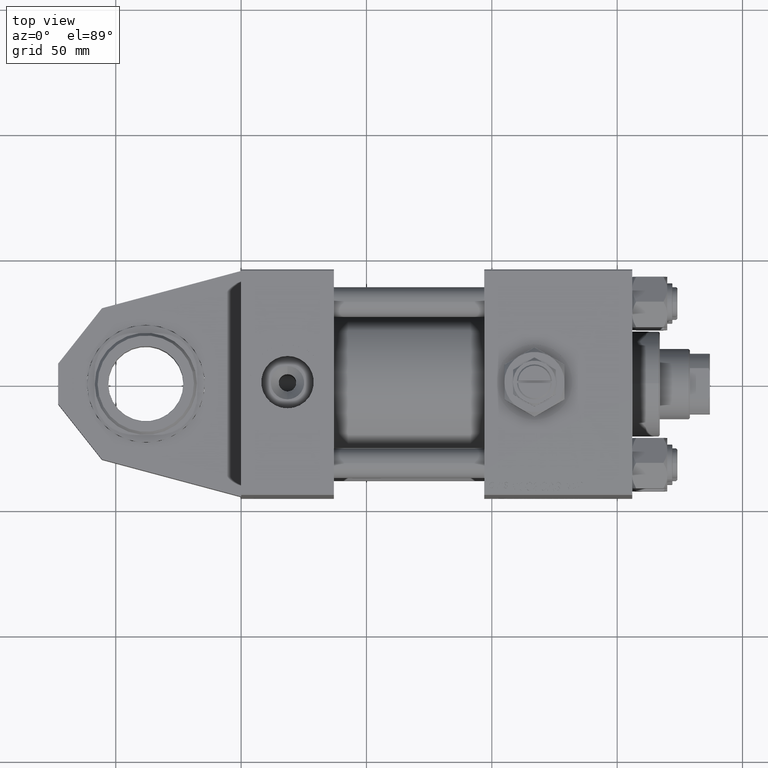
[diagram: clean part render]
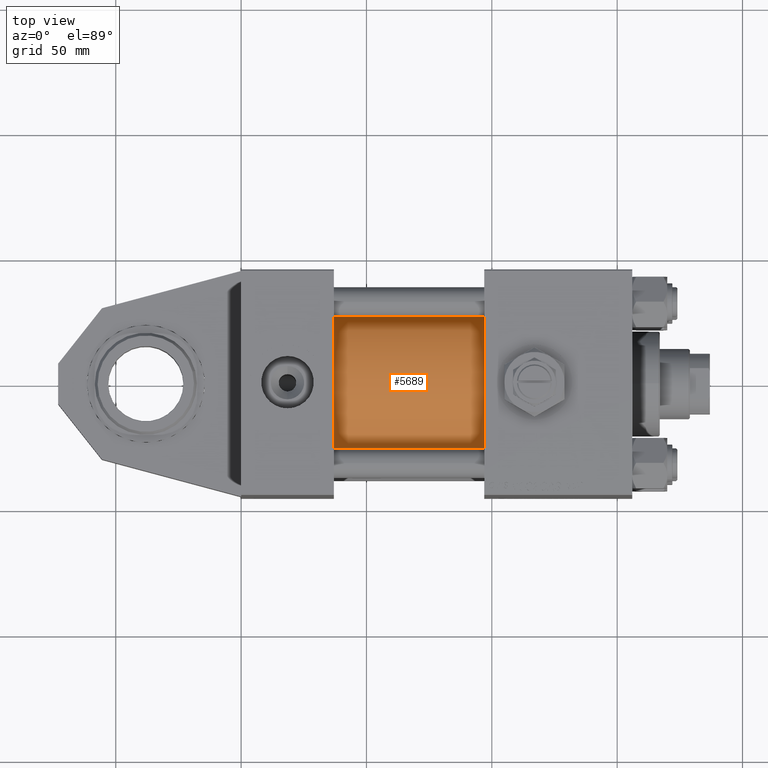
[diagram: same view with one face highlighted and labeled with its STEP entity id]
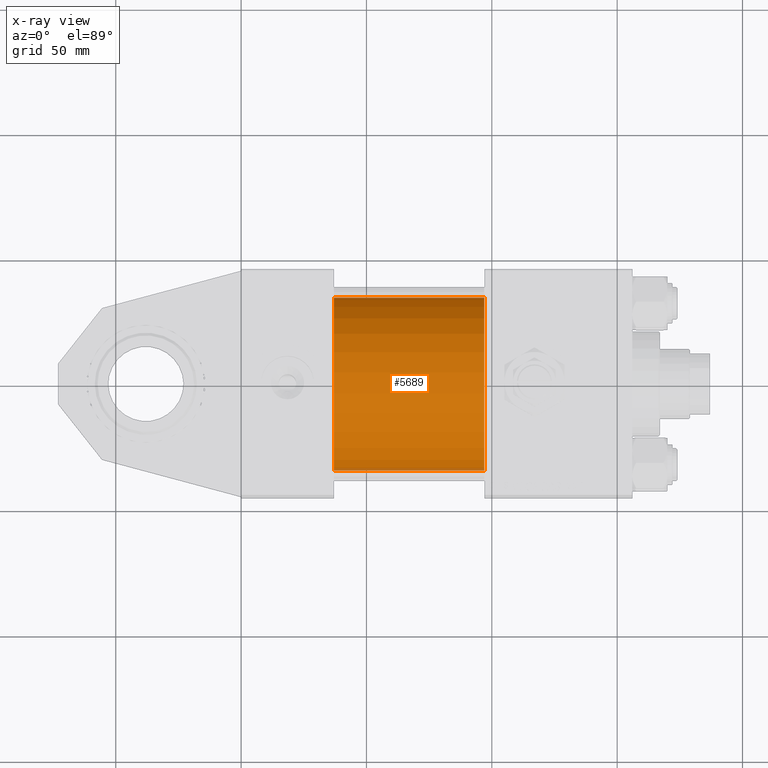
[diagram: x-ray of the same camera — body ghosted, the highlighted face saturated]
A machine part, top view. The second image highlights one B-rep face of the part: STEP entity #5689.
The next image is the same camera in x-ray: the body ghosted, the highlighted face saturated — about 2% of this face is hidden behind the body in this view.
In plain terms, the highlighted cylindrical surface (partial cylindrical patch) has radius 34.5 mm, axis along (-1, 0, -0).
Its self-contained STEP definition (entity closure, byte-faithful):
#3249 = CARTESIAN_POINT ( 'NONE',  ( 97.00000000000000000, 1.622946243093158675E-15, -34.50000000000000000 ) ) ;
#3733 = CARTESIAN_POINT ( 'NONE',  ( 97.00000000000000000, 1.622946243093158675E-15, -34.50000000000000000 ) ) ;
#4621 = DIRECTION ( 'NONE',  ( -1.000000000000000000, -0.000000000000000000, -0.000000000000000000 ) ) ;
#5689 = ADVANCED_FACE ( 'NONE', ( #8566 ), #41112, .T. ) ;
#5774 = AXIS2_PLACEMENT_3D ( 'NONE', #40589, #4621, #13029 ) ;
#6840 = DIRECTION ( 'NONE',  ( -1.000000000000000000, -0.000000000000000000, -0.000000000000000000 ) ) ;
#8328 = VERTEX_POINT ( 'NONE', #11573 ) ;
#8566 = FACE_OUTER_BOUND ( 'NONE', #17679, .T. ) ;
#10545 = CARTESIAN_POINT ( 'NONE',  ( 37.00000000000000000, 1.622946243093158675E-15, -34.50000000000000000 ) ) ;
#11573 = CARTESIAN_POINT ( 'NONE',  ( 37.00000000000000000, -2.602085213965210642E-15, 34.50000000000000000 ) ) ;
#13029 = DIRECTION ( 'NONE',  ( 0.000000000000000000, 0.000000000000000000, 1.000000000000000000 ) ) ;
#15046 = CARTESIAN_POINT ( 'NONE',  ( 97.00000000000000000, -2.602085213965210642E-15, 0.000000000000000000 ) ) ;
#15196 = CARTESIAN_POINT ( 'NONE',  ( 37.00000000000000000, -2.602085213965210642E-15, 0.000000000000000000 ) ) ;
#15457 = DIRECTION ( 'NONE',  ( 0.000000000000000000, 0.000000000000000000, 1.000000000000000000 ) ) ;
#17679 = EDGE_LOOP ( 'NONE', ( #34786, #31860, #42604, #38163 ) ) ;
#18079 = EDGE_CURVE ( 'NONE', #38150, #8328, #18635, .T. ) ;
#18635 = LINE ( 'NONE', #46215, #37948 ) ;
#19378 = DIRECTION ( 'NONE',  ( 1.000000000000000000, -0.000000000000000000, 0.000000000000000000 ) ) ;
#19951 = VERTEX_POINT ( 'NONE', #3733 ) ;
#20259 = AXIS2_PLACEMENT_3D ( 'NONE', #15046, #42865, #39439 ) ;
#20775 = EDGE_CURVE ( 'NONE', #19951, #38150, #42916, .T. ) ;
#23194 = DIRECTION ( 'NONE',  ( -1.000000000000000000, -0.000000000000000000, -0.000000000000000000 ) ) ;
#24319 = VECTOR ( 'NONE', #23194, 1000.000000000000000 ) ;
#26840 = CARTESIAN_POINT ( 'NONE',  ( 97.00000000000000000, -2.602085213965210642E-15, 34.50000000000000000 ) ) ;
#28195 = AXIS2_PLACEMENT_3D ( 'NONE', #15196, #19378, #15457 ) ;
#31303 = EDGE_CURVE ( 'NONE', #51838, #8328, #50841, .T. ) ;
#31860 = ORIENTED_EDGE ( 'NONE', *, *, #43343, .T. ) ;
#34786 = ORIENTED_EDGE ( 'NONE', *, *, #20775, .F. ) ;
#37948 = VECTOR ( 'NONE', #6840, 1000.000000000000000 ) ;
#38150 = VERTEX_POINT ( 'NONE', #26840 ) ;
#38163 = ORIENTED_EDGE ( 'NONE', *, *, #18079, .F. ) ;
#39439 = DIRECTION ( 'NONE',  ( 0.000000000000000000, 0.000000000000000000, -1.000000000000000000 ) ) ;
#40589 = CARTESIAN_POINT ( 'NONE',  ( 97.00000000000000000, -2.602085213965210642E-15, 0.000000000000000000 ) ) ;
#41112 = CYLINDRICAL_SURFACE ( 'NONE', #5774, 34.50000000000000000 ) ;
#42604 = ORIENTED_EDGE ( 'NONE', *, *, #31303, .T. ) ;
#42865 = DIRECTION ( 'NONE',  ( 1.000000000000000000, 0.000000000000000000, 0.000000000000000000 ) ) ;
#42916 = CIRCLE ( 'NONE', #20259, 34.50000000000000000 ) ;
#43145 = LINE ( 'NONE', #3249, #24319 ) ;
#43343 = EDGE_CURVE ( 'NONE', #19951, #51838, #43145, .T. ) ;
#46215 = CARTESIAN_POINT ( 'NONE',  ( 97.00000000000000000, -2.602085213965210642E-15, 34.50000000000000000 ) ) ;
#50841 = CIRCLE ( 'NONE', #28195, 34.50000000000000000 ) ;
#51838 = VERTEX_POINT ( 'NONE', #10545 ) ;